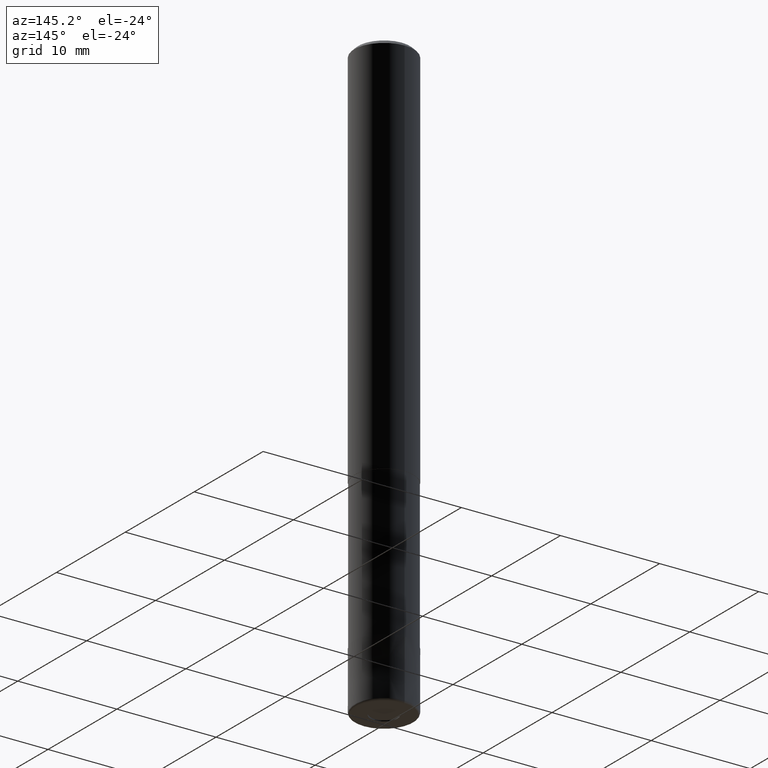
[diagram: clean part render]
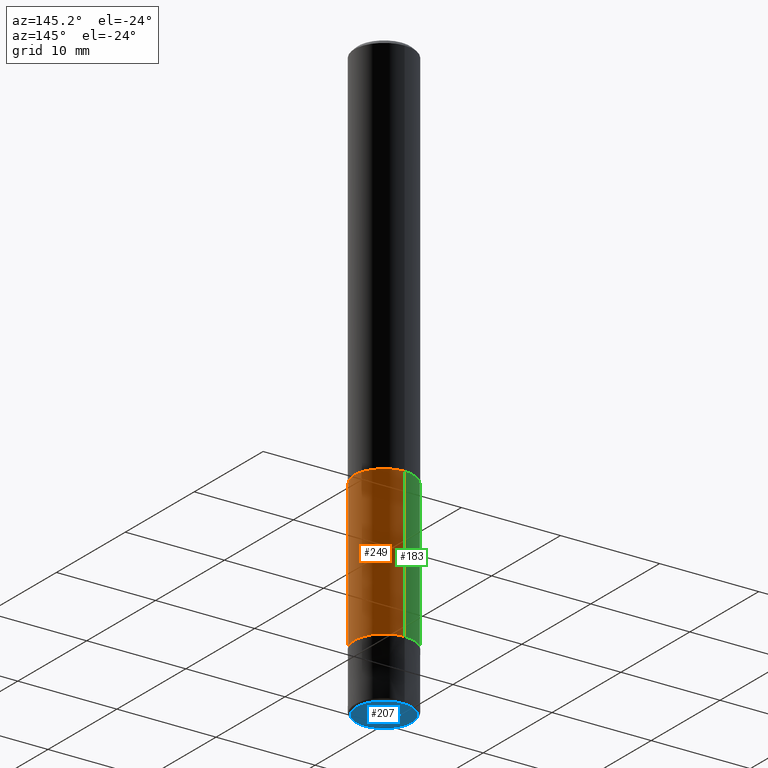
[diagram: same view with three faces highlighted in distinct colors, each labeled with its STEP entity id]
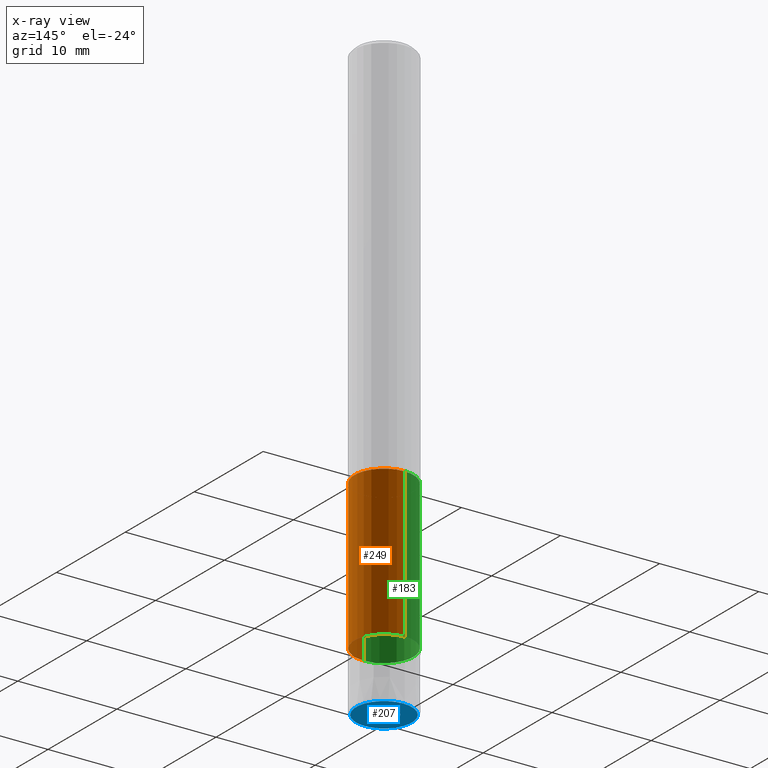
[diagram: x-ray of the same camera — body ghosted, the three highlighted faces saturated]
A machine part, auxiliary view with three faces highlighted in distinct colors.
The next image is the same camera in x-ray (body ghosted, the three faces saturated) — at least one of them is partly hidden behind the body in this view.
Their STEP definitions:

[orange] entity #249 — the highlighted cylindrical surface (edge-blend (fillet) strip) has radius 2.975 mm, axis along (-0, -0, 1).
#123=EDGE_CURVE('',#177,#179,#310,.T.);
#137=EDGE_CURVE('',#179,#151,#327,.T.);
#151=VERTEX_POINT('',#342);
#173=EDGE_CURVE('',#251,#151,#369,.T.);
#177=VERTEX_POINT('',#373);
#179=VERTEX_POINT('',#375);
#245=EDGE_CURVE('',#251,#177,#451,.T.);
#249=ADVANCED_FACE('',(#455),#456,.T.);
#251=VERTEX_POINT('',#458);
#310=CIRCLE('',#515,2.97495);
#327=LINE('',#536,#537);
#342=CARTESIAN_POINT('',(3.64314267230388E-016,-2.97495,-39.0));
#369=CIRCLE('',#590,2.97495);
#373=CARTESIAN_POINT('',(0.0,2.97495,-54.0));
#375=CARTESIAN_POINT('',(3.64314267230388E-016,-2.97495,-54.0));
#451=LINE('',#693,#694);
#455=FACE_OUTER_BOUND('',#700,.T.);
#456=CYLINDRICAL_SURFACE('',#701,2.97495);
#458=CARTESIAN_POINT('',(0.0,2.97495,-39.0));
#515=AXIS2_PLACEMENT_3D('',#750,#751,#752);
#536=CARTESIAN_POINT('',(3.64314267230388E-016,-2.97495,-46.5));
#537=VECTOR('',#771,1.0);
#590=AXIS2_PLACEMENT_3D('',#826,#827,#828);
#693=CARTESIAN_POINT('',(-3.64314267230388E-016,2.97495,-46.5));
#694=VECTOR('',#942,1.0);
#700=EDGE_LOOP('',(#945,#946,#947,#948));
#701=AXIS2_PLACEMENT_3D('',#949,#950,#951);
#750=CARTESIAN_POINT('',(0.0,0.0,-54.0));
#751=DIRECTION('',(0.0,0.0,-1.0));
#752=DIRECTION('',(0.0,1.0,0.0));
#771=DIRECTION('',(-0.0,-0.0,1.0));
#826=CARTESIAN_POINT('',(0.0,0.0,-39.0));
#827=DIRECTION('',(0.0,0.0,-1.0));
#828=DIRECTION('',(0.0,1.0,0.0));
#942=DIRECTION('',(0.0,0.0,-1.0));
#945=ORIENTED_EDGE('',*,*,#245,.F.);
#946=ORIENTED_EDGE('',*,*,#173,.T.);
#947=ORIENTED_EDGE('',*,*,#137,.F.);
#948=ORIENTED_EDGE('',*,*,#123,.F.);
#949=CARTESIAN_POINT('',(0.0,0.0,-46.5));
#950=DIRECTION('',(-0.0,-0.0,1.0));
#951=DIRECTION('',(0.0,1.0,0.0));

[blue] entity #207 — the highlighted planar face has unit normal (0, 0, -1).
#117=VERTEX_POINT('',#304);
#163=VERTEX_POINT('',#356);
#195=EDGE_CURVE('',#117,#235,#394,.T.);
#201=EDGE_CURVE('',#227,#163,#401,.T.);
#207=ADVANCED_FACE('',(#407,#408),#409,.T.);
#215=EDGE_CURVE('',#235,#117,#417,.T.);
#217=EDGE_CURVE('',#163,#227,#419,.T.);
#227=VERTEX_POINT('',#430);
#235=VERTEX_POINT('',#440);
#304=CARTESIAN_POINT('',(3.42889779070266E-016,-2.8,-60.0));
#356=CARTESIAN_POINT('',(0.0,1.35,-60.0));
#394=CIRCLE('',#619,2.8);
#401=CIRCLE('',#626,1.35);
#407=FACE_BOUND('',#634,.T.);
#408=FACE_OUTER_BOUND('',#635,.T.);
#409=PLANE('',#636);
#417=CIRCLE('',#650,2.8);
#419=CIRCLE('',#653,1.35);
#430=CARTESIAN_POINT('',(1.65321857766021E-016,-1.35,-60.0));
#440=CARTESIAN_POINT('',(0.0,2.8,-60.0));
#619=AXIS2_PLACEMENT_3D('',#862,#863,#864);
#626=AXIS2_PLACEMENT_3D('',#874,#875,#876);
#634=EDGE_LOOP('',(#884,#885));
#635=EDGE_LOOP('',(#886,#887));
#636=AXIS2_PLACEMENT_3D('',#888,#889,#890);
#650=AXIS2_PLACEMENT_3D('',#896,#897,#898);
#653=AXIS2_PLACEMENT_3D('',#899,#900,#901);
#862=CARTESIAN_POINT('',(0.0,0.0,-60.0));
#863=DIRECTION('',(0.0,0.0,-1.0));
#864=DIRECTION('',(0.0,1.0,0.0));
#874=CARTESIAN_POINT('',(0.0,0.0,-60.0));
#875=DIRECTION('',(0.0,0.0,-1.0));
#876=DIRECTION('',(0.0,1.0,0.0));
#884=ORIENTED_EDGE('',*,*,#217,.F.);
#885=ORIENTED_EDGE('',*,*,#201,.F.);
#886=ORIENTED_EDGE('',*,*,#215,.T.);
#887=ORIENTED_EDGE('',*,*,#195,.T.);
#888=CARTESIAN_POINT('',(0.0,2.075,-60.0));
#889=DIRECTION('',(0.0,0.0,-1.0));
#890=DIRECTION('',(0.0,1.0,0.0));
#896=CARTESIAN_POINT('',(0.0,0.0,-60.0));
#897=DIRECTION('',(0.0,0.0,-1.0));
#898=DIRECTION('',(0.0,1.0,0.0));
#899=CARTESIAN_POINT('',(0.0,0.0,-60.0));
#900=DIRECTION('',(0.0,0.0,-1.0));
#901=DIRECTION('',(0.0,1.0,0.0));

[green] entity #183 — the highlighted cylindrical surface (edge-blend (fillet) strip) has radius 2.975 mm, axis along (-0, -0, 1).
#137=EDGE_CURVE('',#179,#151,#327,.T.);
#151=VERTEX_POINT('',#342);
#177=VERTEX_POINT('',#373);
#179=VERTEX_POINT('',#375);
#183=ADVANCED_FACE('',(#379),#380,.T.);
#203=EDGE_CURVE('',#151,#251,#403,.T.);
#243=EDGE_CURVE('',#179,#177,#449,.T.);
#245=EDGE_CURVE('',#251,#177,#451,.T.);
#251=VERTEX_POINT('',#458);
#327=LINE('',#536,#537);
#342=CARTESIAN_POINT('',(3.64314267230388E-016,-2.97495,-39.0));
#373=CARTESIAN_POINT('',(0.0,2.97495,-54.0));
#375=CARTESIAN_POINT('',(3.64314267230388E-016,-2.97495,-54.0));
#379=FACE_OUTER_BOUND('',#602,.T.);
#380=CYLINDRICAL_SURFACE('',#603,2.97495);
#403=CIRCLE('',#629,2.97495);
#449=CIRCLE('',#690,2.97495);
#451=LINE('',#693,#694);
#458=CARTESIAN_POINT('',(0.0,2.97495,-39.0));
#536=CARTESIAN_POINT('',(3.64314267230388E-016,-2.97495,-46.5));
#537=VECTOR('',#771,1.0);
#602=EDGE_LOOP('',(#836,#837,#838,#839));
#603=AXIS2_PLACEMENT_3D('',#840,#841,#842);
#629=AXIS2_PLACEMENT_3D('',#877,#878,#879);
#690=AXIS2_PLACEMENT_3D('',#939,#940,#941);
#693=CARTESIAN_POINT('',(-3.64314267230388E-016,2.97495,-46.5));
#694=VECTOR('',#942,1.0);
#771=DIRECTION('',(-0.0,-0.0,1.0));
#836=ORIENTED_EDGE('',*,*,#245,.T.);
#837=ORIENTED_EDGE('',*,*,#243,.F.);
#838=ORIENTED_EDGE('',*,*,#137,.T.);
#839=ORIENTED_EDGE('',*,*,#203,.T.);
#840=CARTESIAN_POINT('',(0.0,0.0,-46.5));
#841=DIRECTION('',(-0.0,-0.0,1.0));
#842=DIRECTION('',(0.0,1.0,0.0));
#877=CARTESIAN_POINT('',(0.0,0.0,-39.0));
#878=DIRECTION('',(0.0,0.0,-1.0));
#879=DIRECTION('',(0.0,1.0,0.0));
#939=CARTESIAN_POINT('',(0.0,0.0,-54.0));
#940=DIRECTION('',(0.0,0.0,-1.0));
#941=DIRECTION('',(0.0,1.0,0.0));
#942=DIRECTION('',(0.0,0.0,-1.0));